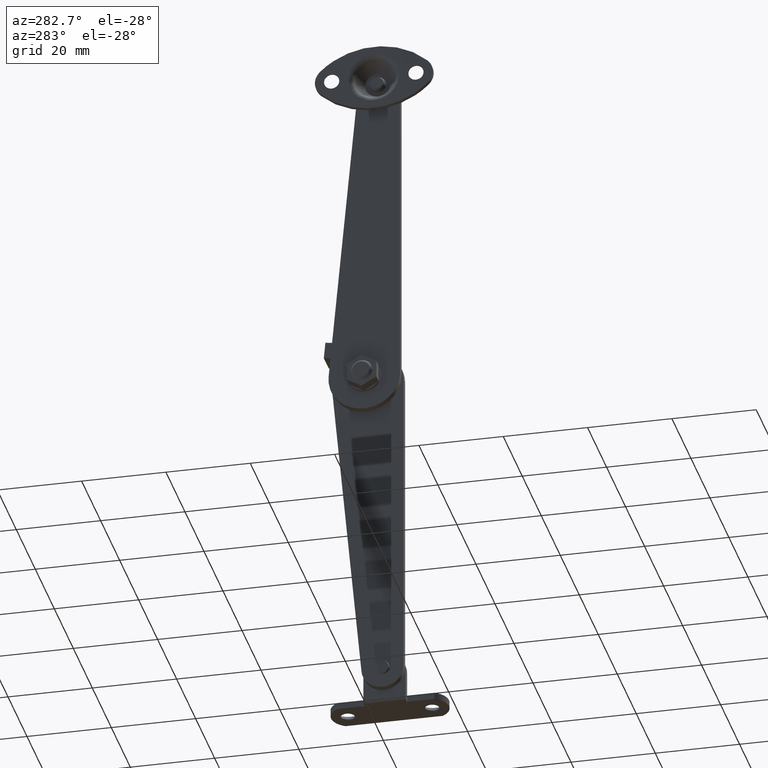
[diagram: clean part render]
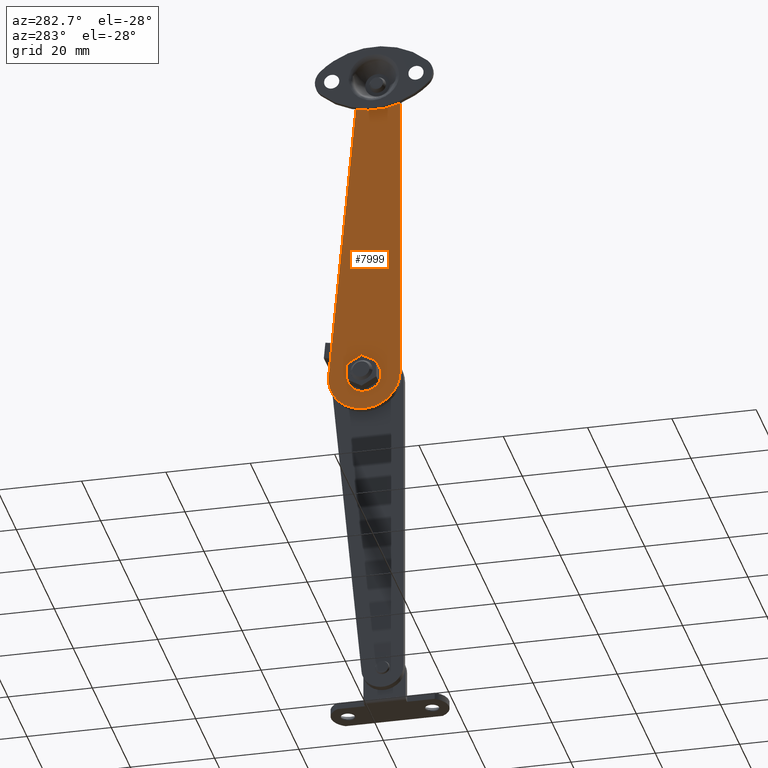
[diagram: same view with one face highlighted and labeled with its STEP entity id]
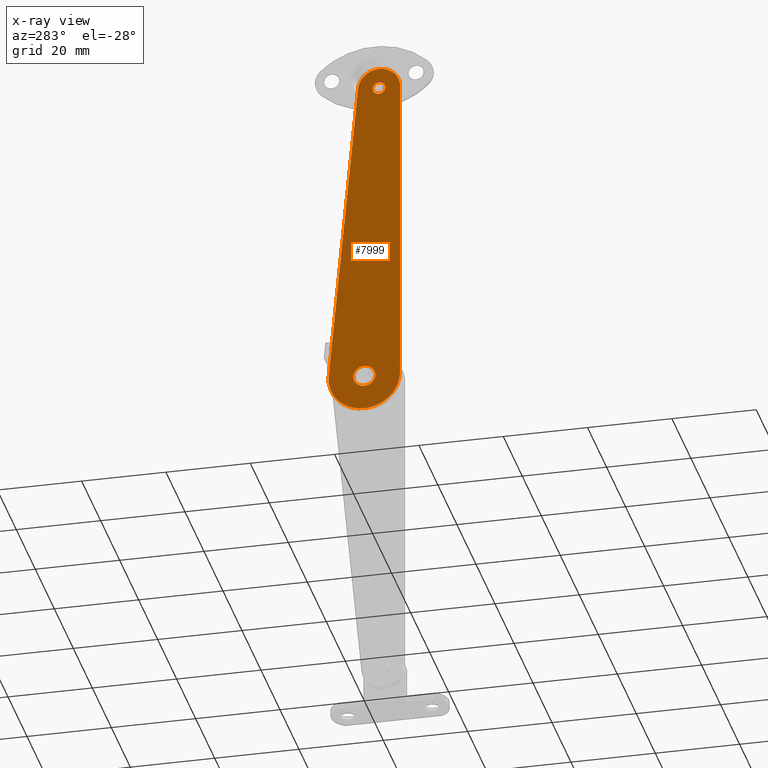
[diagram: x-ray of the same camera — body ghosted, the highlighted face saturated]
A machine part, auxiliary view. The second image highlights one B-rep face of the part: STEP entity #7999.
The next image is the same camera in x-ray: the body ghosted, the highlighted face saturated — about 0% of this face is hidden behind the body in this view.
In plain terms, the highlighted face is a freeform B-spline surface patch.
Its self-contained STEP definition (entity closure, byte-faithful):
#7529=CARTESIAN_POINT('',(2.484500E-017,-2.581824766095675,-0.306889030717961));
#7530=VERTEX_POINT('',#7529);
#7536=CARTESIAN_POINT('',(0.0,0.0,2.600000000000000));
#7537=VERTEX_POINT('',#7536);
#7538=CARTESIAN_POINT('',(2.484500E-017,-2.581824766095676,-0.306889030717961));
#7539=CARTESIAN_POINT('',(0.0,-2.600000000000000,-0.153982731923245));
#7540=CARTESIAN_POINT('',(0.0,-2.600000000000000,0.0));
#7541=CARTESIAN_POINT('',(0.0,-2.600000000000001,2.600000000000001));
#7542=CARTESIAN_POINT('',(0.0,0.0,2.600000000000000));
#7550=(BOUNDED_CURVE()B_SPLINE_CURVE(2,(#7538,#7539,#7540,#7541,#7542),.UNSPECIFIED.,.F.,.U.)B_SPLINE_CURVE_WITH_KNOTS((3,2,3),(0.229562470817380,0.250000000000000,0.500000000000000),.UNSPECIFIED.)CURVE()GEOMETRIC_REPRESENTATION_ITEM()RATIONAL_B_SPLINE_CURVE((0.956026748899178,0.976055945172434,1.0,0.707106781186548,1.0))REPRESENTATION_ITEM(''));
#7551=EDGE_CURVE('',#7530,#7537,#7550,.T.);
#7553=CARTESIAN_POINT('',(2.428613E-017,2.595150475889329,0.158726202913659));
#7554=VERTEX_POINT('',#7553);
#7555=CARTESIAN_POINT('',(0.0,0.0,2.600000000000000));
#7556=CARTESIAN_POINT('',(0.0,2.445835773722483,2.599999999999999));
#7557=CARTESIAN_POINT('',(2.428613E-017,2.595150475889329,0.158726202913659));
#7565=(BOUNDED_CURVE()B_SPLINE_CURVE(2,(#7555,#7556,#7557),.UNSPECIFIED.,.F.,.U.)B_SPLINE_CURVE_WITH_KNOTS((3,3),(0.500000000000000,0.739332962225609),.UNSPECIFIED.)CURVE()GEOMETRIC_REPRESENTATION_ITEM()RATIONAL_B_SPLINE_CURVE((1.0,0.719603993302332,0.976072041638141))REPRESENTATION_ITEM(''));
#7566=EDGE_CURVE('',#7537,#7554,#7565,.T.);
#7640=CARTESIAN_POINT('',(0.0,0.0,-2.600000000000000));
#7641=VERTEX_POINT('',#7640);
#7642=CARTESIAN_POINT('',(2.428613E-017,2.595150475889329,0.158726202913659));
#7643=CARTESIAN_POINT('',(0.0,2.600000000000000,0.079437184699707));
#7644=CARTESIAN_POINT('',(0.0,2.600000000000000,0.0));
#7645=CARTESIAN_POINT('',(0.0,2.600000000000001,-2.600000000000001));
#7646=CARTESIAN_POINT('',(0.0,0.0,-2.600000000000000));
#7654=(BOUNDED_CURVE()B_SPLINE_CURVE(2,(#7642,#7643,#7644,#7645,#7646),.UNSPECIFIED.,.F.,.U.)B_SPLINE_CURVE_WITH_KNOTS((3,2,3),(0.739332962225608,0.750000000000000,1.0),.UNSPECIFIED.)CURVE()GEOMETRIC_REPRESENTATION_ITEM()RATIONAL_B_SPLINE_CURVE((0.976072041638139,0.987502787884215,1.0,0.707106781186548,1.0))REPRESENTATION_ITEM(''));
#7655=EDGE_CURVE('',#7554,#7641,#7654,.T.);
#7657=CARTESIAN_POINT('',(0.0,0.0,-2.600000000000000));
#7658=CARTESIAN_POINT('',(0.0,-2.309253730345034,-2.600000000000001));
#7659=CARTESIAN_POINT('',(2.484500E-017,-2.581824766095675,-0.306889030717961));
#7667=(BOUNDED_CURVE()B_SPLINE_CURVE(2,(#7657,#7658,#7659),.UNSPECIFIED.,.F.,.U.)B_SPLINE_CURVE_WITH_KNOTS((3,3),(0.0,0.229562470817380),.UNSPECIFIED.)CURVE()GEOMETRIC_REPRESENTATION_ITEM()RATIONAL_B_SPLINE_CURVE((1.0,0.731050836014113,0.956026748899177))REPRESENTATION_ITEM(''));
#7668=EDGE_CURVE('',#7641,#7530,#7667,.T.);
#7715=CARTESIAN_POINT('',(7.098571E-018,-4.989557289518007,74.822948647783562));
#7716=VERTEX_POINT('',#7715);
#7722=CARTESIAN_POINT('',(0.0,-3.500043000000000,76.500000000000000));
#7723=VERTEX_POINT('',#7722);
#7724=CARTESIAN_POINT('',(7.098571E-018,-4.989557289518007,74.822948647783562));
#7725=CARTESIAN_POINT('',(0.0,-5.000043000000001,74.911163820288408));
#7726=CARTESIAN_POINT('',(0.0,-5.000043000000000,75.0));
#7727=CARTESIAN_POINT('',(0.0,-5.000043000000000,76.500000000000000));
#7728=CARTESIAN_POINT('',(0.0,-3.500043000000000,76.500000000000000));
#7736=(BOUNDED_CURVE()B_SPLINE_CURVE(2,(#7724,#7725,#7726,#7727,#7728),.UNSPECIFIED.,.F.,.U.)B_SPLINE_CURVE_WITH_KNOTS((3,2,3),(0.229562473463160,0.250000000000000,0.500000000000000),.UNSPECIFIED.)CURVE()GEOMETRIC_REPRESENTATION_ITEM()RATIONAL_B_SPLINE_CURVE((0.956026754085014,0.976055948272158,1.0,0.707106781186548,1.0))REPRESENTATION_ITEM(''));
#7737=EDGE_CURVE('',#7716,#7723,#7736,.T.);
#7739=CARTESIAN_POINT('',(3.469447E-018,-2.002840802477172,75.091572811100320));
#7740=VERTEX_POINT('',#7739);
#7741=CARTESIAN_POINT('',(0.0,-3.500043000000000,76.500000000000000));
#7742=CARTESIAN_POINT('',(0.0,-2.088983903036947,76.500000000000000));
#7743=CARTESIAN_POINT('',(3.469447E-018,-2.002840802477172,75.091572811100320));
#7751=(BOUNDED_CURVE()B_SPLINE_CURVE(2,(#7741,#7742,#7743),.UNSPECIFIED.,.F.,.U.)B_SPLINE_CURVE_WITH_KNOTS((3,3),(0.500000000000000,0.739332961827536),.UNSPECIFIED.)CURVE()GEOMETRIC_REPRESENTATION_ITEM()RATIONAL_B_SPLINE_CURVE((1.0,0.719603993768703,0.976072040784995))REPRESENTATION_ITEM(''));
#7752=EDGE_CURVE('',#7723,#7740,#7751,.T.);
#7826=CARTESIAN_POINT('',(0.0,-3.500043000000000,73.500000000000000));
#7827=VERTEX_POINT('',#7826);
#7828=CARTESIAN_POINT('',(3.469447E-018,-2.002840802477171,75.091572811100320));
#7829=CARTESIAN_POINT('',(0.0,-2.000043000000000,75.045829146750961));
#7830=CARTESIAN_POINT('',(0.0,-2.000043000000000,75.0));
#7831=CARTESIAN_POINT('',(0.0,-2.000043000000000,73.500000000000000));
#7832=CARTESIAN_POINT('',(0.0,-3.500043000000000,73.500000000000000));
#7840=(BOUNDED_CURVE()B_SPLINE_CURVE(2,(#7828,#7829,#7830,#7831,#7832),.UNSPECIFIED.,.F.,.U.)B_SPLINE_CURVE_WITH_KNOTS((3,2,3),(0.739332961827537,0.750000000000000,1.0),.UNSPECIFIED.)CURVE()GEOMETRIC_REPRESENTATION_ITEM()RATIONAL_B_SPLINE_CURVE((0.976072040784996,0.987502787417845,1.0,0.707106781186548,1.0))REPRESENTATION_ITEM(''));
#7841=EDGE_CURVE('',#7740,#7827,#7840,.T.);
#7843=CARTESIAN_POINT('',(0.0,-3.500043000000000,73.500000000000000));
#7844=CARTESIAN_POINT('',(0.0,-4.832304788510400,73.499999999999986));
#7845=CARTESIAN_POINT('',(7.098571E-018,-4.989557289518007,74.822948647783562));
#7853=(BOUNDED_CURVE()B_SPLINE_CURVE(2,(#7843,#7844,#7845),.UNSPECIFIED.,.F.,.U.)B_SPLINE_CURVE_WITH_KNOTS((3,3),(0.0,0.229562473463160),.UNSPECIFIED.)CURVE()GEOMETRIC_REPRESENTATION_ITEM()RATIONAL_B_SPLINE_CURVE((1.0,0.731050832914390,0.956026754085014))REPRESENTATION_ITEM(''));
#7854=EDGE_CURVE('',#7827,#7716,#7853,.T.);
#7930=CARTESIAN_POINT('',(0.0,-9.349102831688898,84.414945201942643));
#7931=CARTESIAN_POINT('',(0.0,9.348200115655764,84.414945201942643));
#7932=CARTESIAN_POINT('',(0.0,-9.349102831688898,-12.910770695993049));
#7933=CARTESIAN_POINT('',(0.0,9.348200115655764,-12.910770695993049));
#7934=B_SPLINE_SURFACE_WITH_KNOTS('',1,1,((#7930,#7932),(#7931,#7933)),.UNSPECIFIED.,.F.,.F.,.U.,(2,2),(2,2),(0.0,18.697302947344660),(0.0,97.325715897935694),.UNSPECIFIED.);
#7935=CARTESIAN_POINT('',(0.0,1.478226280506690,75.465655420631492));
#7936=VERTEX_POINT('',#7935);
#7937=CARTESIAN_POINT('',(0.0,-8.499992998506329,75.022360957866596));
#7938=VERTEX_POINT('',#7937);
#7939=CARTESIAN_POINT('',(0.0,1.478226280506681,75.465655420631492));
#7940=CARTESIAN_POINT('',(0.0,1.034788618051258,80.206397168741674));
#7941=CARTESIAN_POINT('',(0.0,-3.721955164071165,79.995073071681446));
#7942=CARTESIAN_POINT('',(0.0,-8.478698946193589,79.783748974621247));
#7943=CARTESIAN_POINT('',(0.0,-8.499992998506313,75.022360957866596));
#7951=(BOUNDED_CURVE()B_SPLINE_CURVE(2,(#7939,#7940,#7941,#7942,#7943),.UNSPECIFIED.,.F.,.U.)B_SPLINE_CURVE_WITH_KNOTS((3,2,3),(0.0,0.500000000000000,1.0),.UNSPECIFIED.)CURVE()GEOMETRIC_REPRESENTATION_ITEM()RATIONAL_B_SPLINE_CURVE((1.0,0.724171862791045,1.0,0.724171862791045,1.0))REPRESENTATION_ITEM(''));
#7952=EDGE_CURVE('',#7936,#7938,#7951,.T.);
#7953=ORIENTED_EDGE('',*,*,#7952,.F.);
#7954=CARTESIAN_POINT('',(0.0,8.463057776861380,0.791614215073322));
#7955=VERTEX_POINT('',#7954);
#7956=CARTESIAN_POINT('',(0.0,8.463057776861380,0.791614215073322));
#7957=CARTESIAN_POINT('',(0.0,1.478226280506690,75.465655420631492));
#7958=QUASI_UNIFORM_CURVE('',1,(#7956,#7957),.UNSPECIFIED.,.F.,.U.);
#7959=EDGE_CURVE('',#7955,#7936,#7958,.T.);
#7960=ORIENTED_EDGE('',*,*,#7959,.F.);
#7961=CARTESIAN_POINT('',(0.0,-8.499998009850831,0.005816573899523));
#7962=VERTEX_POINT('',#7961);
#7963=CARTESIAN_POINT('',(0.0,-8.499998009850831,0.005816573899522));
#7964=CARTESIAN_POINT('',(0.0,-8.503478766165232,-5.080755393769863));
#7965=CARTESIAN_POINT('',(0.0,-4.022548644652178,-7.487930448488884));
#7966=CARTESIAN_POINT('',(0.0,0.458381476860879,-9.895105503207905));
#7967=CARTESIAN_POINT('',(0.0,4.697578663235845,-7.083978733925685));
#7968=CARTESIAN_POINT('',(0.0,8.936775849610811,-4.272851964643464));
#7969=CARTESIAN_POINT('',(0.0,8.463057776861378,0.791614215073320));
#7977=(BOUNDED_CURVE()B_SPLINE_CURVE(2,(#7963,#7964,#7965,#7966,#7967,#7968,#7969),.UNSPECIFIED.,.F.,.U.)B_SPLINE_CURVE_WITH_KNOTS((3,2,2,3),(0.0,0.333333333333333,0.666666666666667,1.0),.UNSPECIFIED.)CURVE()GEOMETRIC_REPRESENTATION_ITEM()RATIONAL_B_SPLINE_CURVE((1.0,0.858090345269903,1.0,0.858090345269903,1.0,0.858090345269903,1.0))REPRESENTATION_ITEM(''));
#7978=EDGE_CURVE('',#7962,#7955,#7977,.T.);
#7979=ORIENTED_EDGE('',*,*,#7978,.F.);
#7980=CARTESIAN_POINT('',(0.0,-8.499992998506329,75.022360957866596));
#7981=CARTESIAN_POINT('',(0.0,-8.499998009850831,0.005816573899523));
#7982=QUASI_UNIFORM_CURVE('',1,(#7980,#7981),.UNSPECIFIED.,.F.,.U.);
#7983=EDGE_CURVE('',#7938,#7962,#7982,.T.);
#7984=ORIENTED_EDGE('',*,*,#7983,.F.);
#7985=EDGE_LOOP('',(#7953,#7960,#7979,#7984));
#7986=FACE_OUTER_BOUND('',#7985,.T.);
#7987=ORIENTED_EDGE('',*,*,#7752,.F.);
#7988=ORIENTED_EDGE('',*,*,#7737,.F.);
#7989=ORIENTED_EDGE('',*,*,#7854,.F.);
#7990=ORIENTED_EDGE('',*,*,#7841,.F.);
#7991=EDGE_LOOP('',(#7987,#7988,#7989,#7990));
#7992=FACE_BOUND('',#7991,.T.);
#7993=ORIENTED_EDGE('',*,*,#7566,.F.);
#7994=ORIENTED_EDGE('',*,*,#7551,.F.);
#7995=ORIENTED_EDGE('',*,*,#7668,.F.);
#7996=ORIENTED_EDGE('',*,*,#7655,.F.);
#7997=EDGE_LOOP('',(#7993,#7994,#7995,#7996));
#7998=FACE_BOUND('',#7997,.T.);
#7999=ADVANCED_FACE('',(#7986,#7992,#7998),#7934,.T.);